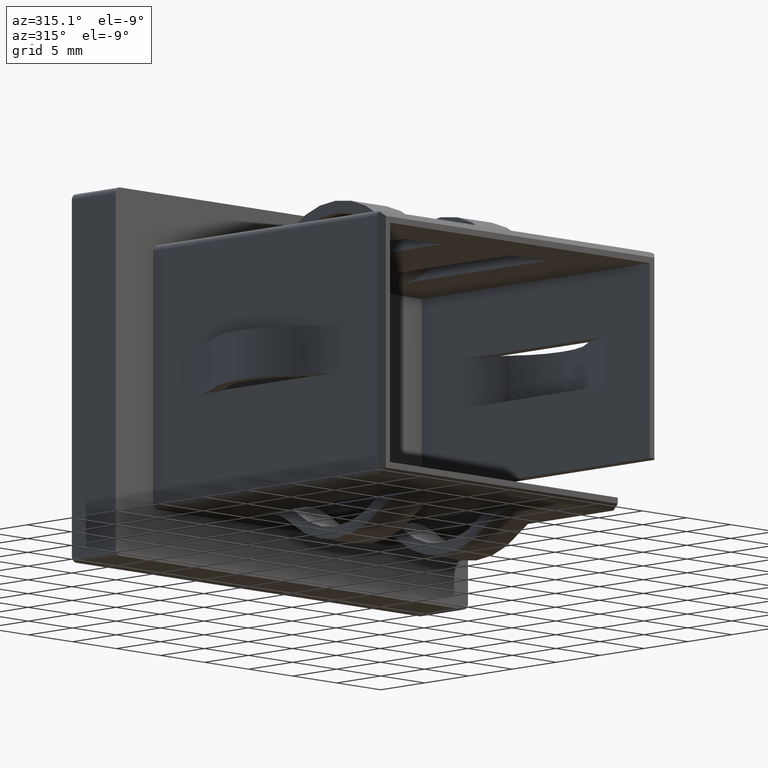
[diagram: clean part render]
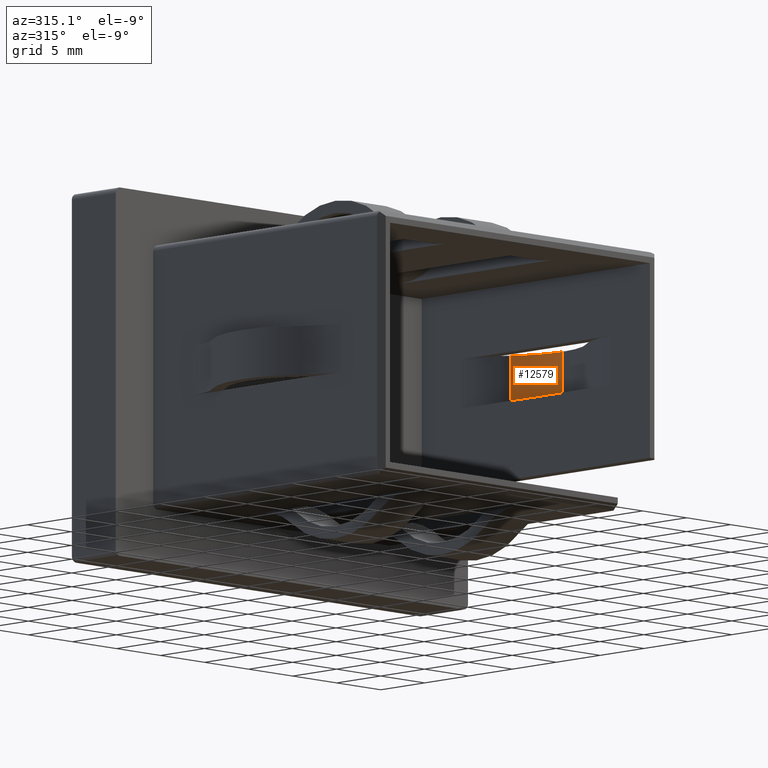
[diagram: same view with one face highlighted and labeled with its STEP entity id]
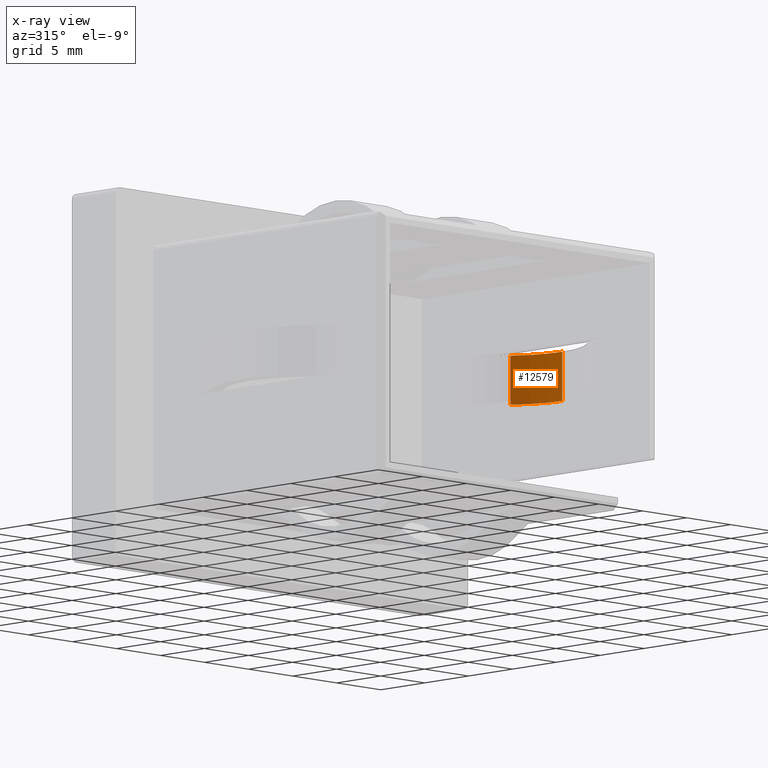
[diagram: x-ray of the same camera — body ghosted, the highlighted face saturated]
A machine part, auxiliary view. The second image highlights one B-rep face of the part: STEP entity #12579.
The next image is the same camera in x-ray: the body ghosted, the highlighted face saturated — about 0% of this face is hidden behind the body in this view.
In plain terms, the highlighted cylindrical surface (partial cylindrical patch) has radius 6.9657 mm, axis along (-0, -0, 1).
Its self-contained STEP definition (entity closure, byte-faithful):
#344 = ORIENTED_EDGE ( 'NONE', *, *, #10032, .T. ) ;
#401 = DIRECTION ( 'NONE',  ( -0.000000000000000000, -0.000000000000000000, 1.000000000000000000 ) ) ;
#845 = AXIS2_PLACEMENT_3D ( 'NONE', #9297, #2469, #14079 ) ;
#879 = LINE ( 'NONE', #5542, #12820 ) ;
#906 = EDGE_CURVE ( 'NONE', #1372, #2573, #879, .T. ) ;
#960 = VERTEX_POINT ( 'NONE', #6234 ) ;
#1098 = FACE_OUTER_BOUND ( 'NONE', #1726, .T. ) ;
#1343 = ORIENTED_EDGE ( 'NONE', *, *, #906, .F. ) ;
#1372 = VERTEX_POINT ( 'NONE', #10680 ) ;
#1639 = ORIENTED_EDGE ( 'NONE', *, *, #7429, .T. ) ;
#1726 = EDGE_LOOP ( 'NONE', ( #2611, #344, #1639, #1343 ) ) ;
#2469 = DIRECTION ( 'NONE',  ( -0.000000000000000000, -0.000000000000000000, 1.000000000000000000 ) ) ;
#2573 = VERTEX_POINT ( 'NONE', #11108 ) ;
#2611 = ORIENTED_EDGE ( 'NONE', *, *, #3180, .F. ) ;
#2945 = CARTESIAN_POINT ( 'NONE',  ( 17.74999999999999645, -13.00000000000000533, 0.3249999999999902411 ) ) ;
#2967 = CIRCLE ( 'NONE', #845, 6.965686218284227849 ) ;
#3180 = EDGE_CURVE ( 'NONE', #9267, #1372, #2967, .T. ) ;
#3903 = CARTESIAN_POINT ( 'NONE',  ( 17.74999999999999645, -13.00000000000000533, 0.3249999999999902411 ) ) ;
#4348 = CYLINDRICAL_SURFACE ( 'NONE', #11224, 6.965686218284227849 ) ;
#4481 = CARTESIAN_POINT ( 'NONE',  ( 10.78431378171576682, -13.00000000000000533, 4.324999999999990408 ) ) ;
#4663 = CIRCLE ( 'NONE', #6833, 6.965686218284227849 ) ;
#5542 = CARTESIAN_POINT ( 'NONE',  ( 16.20683256675489758, -8.627692312120229801, 0.3249999999999902411 ) ) ;
#5857 = VECTOR ( 'NONE', #9947, 1000.000000000000000 ) ;
#6234 = CARTESIAN_POINT ( 'NONE',  ( 17.74999999999999645, -13.00000000000000533, 4.324999999999990408 ) ) ;
#6488 = DIRECTION ( 'NONE',  ( -0.000000000000000000, -0.000000000000000000, 1.000000000000000000 ) ) ;
#6833 = AXIS2_PLACEMENT_3D ( 'NONE', #4481, #9211, #10236 ) ;
#7429 = EDGE_CURVE ( 'NONE', #960, #2573, #4663, .T. ) ;
#8378 = LINE ( 'NONE', #3903, #5857 ) ;
#8706 = CARTESIAN_POINT ( 'NONE',  ( 10.78431378171576682, -13.00000000000000533, 0.3249999999999902411 ) ) ;
#9211 = DIRECTION ( 'NONE',  ( -0.000000000000000000, -0.000000000000000000, 1.000000000000000000 ) ) ;
#9267 = VERTEX_POINT ( 'NONE', #2945 ) ;
#9297 = CARTESIAN_POINT ( 'NONE',  ( 10.78431378171576682, -13.00000000000000533, 0.3249999999999902411 ) ) ;
#9823 = DIRECTION ( 'NONE',  ( 1.000000000000000000, 0.000000000000000000, 0.000000000000000000 ) ) ;
#9947 = DIRECTION ( 'NONE',  ( -0.000000000000000000, -0.000000000000000000, 1.000000000000000000 ) ) ;
#10032 = EDGE_CURVE ( 'NONE', #9267, #960, #8378, .T. ) ;
#10236 = DIRECTION ( 'NONE',  ( -1.000000000000000000, 0.000000000000000000, 0.000000000000000000 ) ) ;
#10680 = CARTESIAN_POINT ( 'NONE',  ( 16.20683256675489758, -8.627692312120229801, 0.3249999999999902411 ) ) ;
#11108 = CARTESIAN_POINT ( 'NONE',  ( 16.20683256675489758, -8.627692312120229801, 4.324999999999990408 ) ) ;
#11224 = AXIS2_PLACEMENT_3D ( 'NONE', #8706, #6488, #9823 ) ;
#12579 = ADVANCED_FACE ( 'NONE', ( #1098 ), #4348, .F. ) ;
#12820 = VECTOR ( 'NONE', #401, 1000.000000000000000 ) ;
#14079 = DIRECTION ( 'NONE',  ( -1.000000000000000000, 0.000000000000000000, 0.000000000000000000 ) ) ;